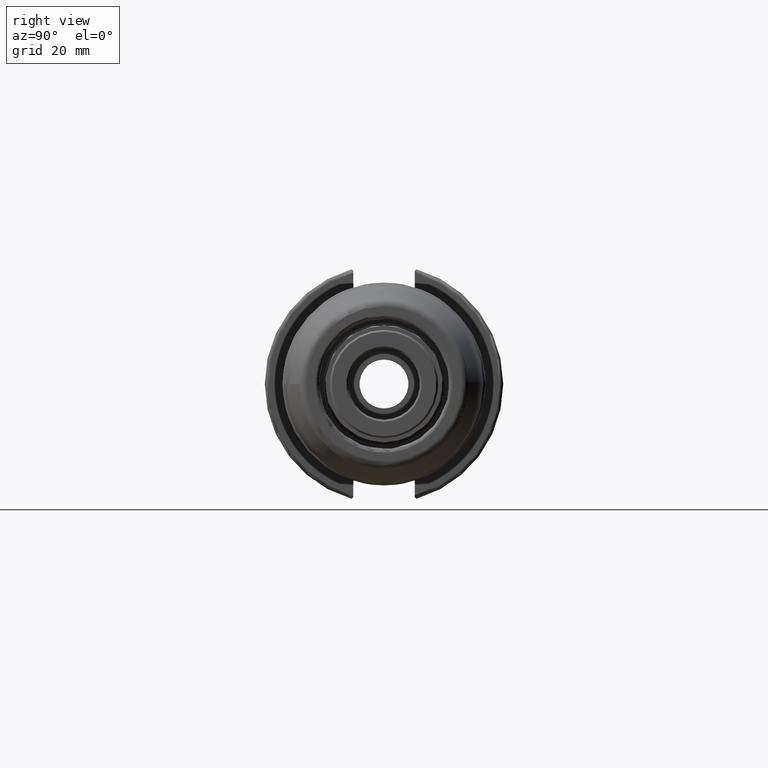
[diagram: clean part render]
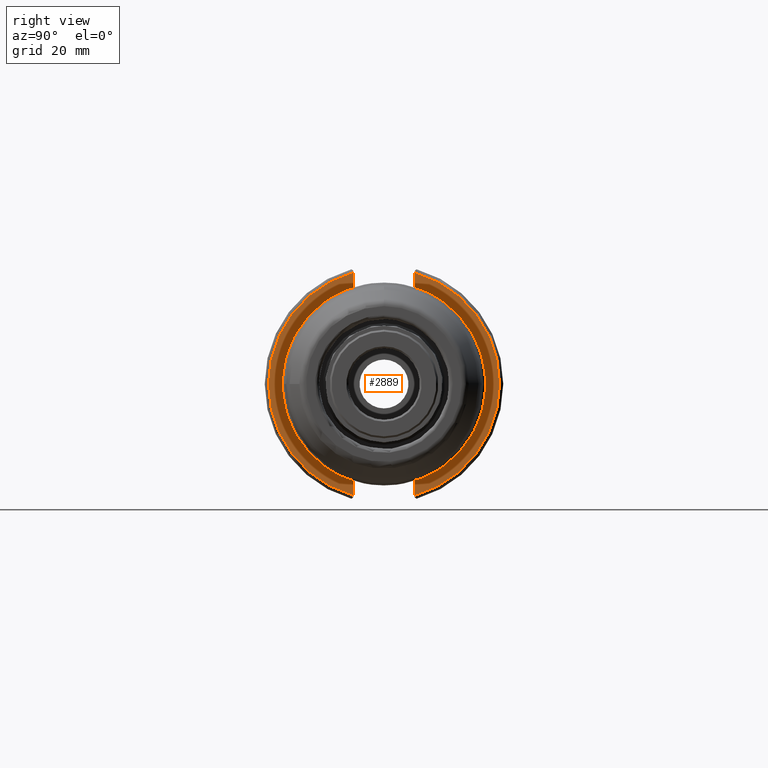
[diagram: same view with one face highlighted and labeled with its STEP entity id]
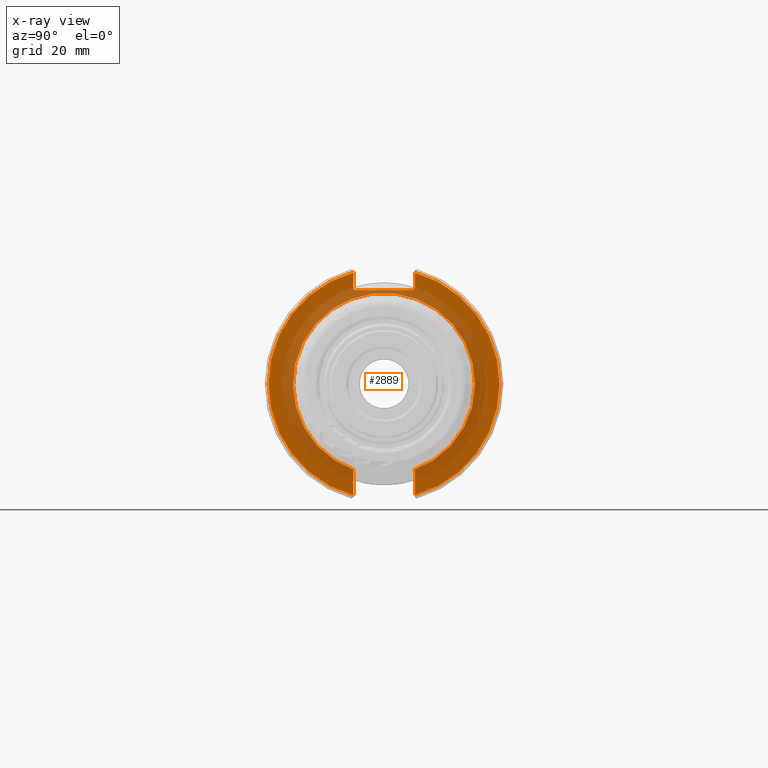
[diagram: x-ray of the same camera — body ghosted, the highlighted face saturated]
A machine part, right view. The second image highlights one B-rep face of the part: STEP entity #2889.
The next image is the same camera in x-ray: the body ghosted, the highlighted face saturated — about 42% of this face is hidden behind the body in this view.
In plain terms, the highlighted planar face has unit normal (1, 0, 0).
Its self-contained STEP definition (entity closure, byte-faithful):
#249=PLANE('',#3180);
#326=FACE_OUTER_BOUND('',#493,.T.);
#493=EDGE_LOOP('',(#2077,#2078,#2079,#2080,#2081,#2082,#2083,#2084,#2085,
#2086,#2087,#2088));
#658=LINE('',#4514,#807);
#664=LINE('',#4539,#813);
#665=LINE('',#4541,#814);
#666=LINE('',#4543,#815);
#667=LINE('',#4545,#816);
#668=LINE('',#4547,#817);
#669=LINE('',#4549,#818);
#670=LINE('',#4553,#819);
#671=LINE('',#4554,#820);
#807=VECTOR('',#3639,10.);
#813=VECTOR('',#3647,10.);
#814=VECTOR('',#3648,10.);
#815=VECTOR('',#3649,10.);
#816=VECTOR('',#3650,10.);
#817=VECTOR('',#3651,10.);
#818=VECTOR('',#3652,10.);
#819=VECTOR('',#3655,10.);
#820=VECTOR('',#3656,10.);
#961=CIRCLE('',#3134,24.225);
#989=CIRCLE('',#3176,30.75);
#991=CIRCLE('',#3181,30.75);
#1150=VERTEX_POINT('',#4354);
#1151=VERTEX_POINT('',#4359);
#1190=VERTEX_POINT('',#4469);
#1191=VERTEX_POINT('',#4476);
#1197=VERTEX_POINT('',#4513);
#1204=VERTEX_POINT('',#4540);
#1205=VERTEX_POINT('',#4542);
#1206=VERTEX_POINT('',#4544);
#1207=VERTEX_POINT('',#4546);
#1208=VERTEX_POINT('',#4548);
#1209=VERTEX_POINT('',#4550);
#1210=VERTEX_POINT('',#4552);
#1481=EDGE_CURVE('',#1150,#1151,#961,.T.);
#1529=EDGE_CURVE('',#1190,#1191,#989,.T.);
#1537=EDGE_CURVE('',#1197,#1191,#658,.T.);
#1546=EDGE_CURVE('',#1197,#1150,#664,.T.);
#1547=EDGE_CURVE('',#1190,#1204,#665,.T.);
#1548=EDGE_CURVE('',#1205,#1204,#666,.T.);
#1549=EDGE_CURVE('',#1205,#1206,#667,.T.);
#1550=EDGE_CURVE('',#1207,#1206,#668,.T.);
#1551=EDGE_CURVE('',#1207,#1208,#669,.T.);
#1552=EDGE_CURVE('',#1209,#1208,#991,.T.);
#1553=EDGE_CURVE('',#1209,#1210,#670,.T.);
#1554=EDGE_CURVE('',#1151,#1210,#671,.T.);
#2077=ORIENTED_EDGE('',*,*,#1481,.F.);
#2078=ORIENTED_EDGE('',*,*,#1546,.F.);
#2079=ORIENTED_EDGE('',*,*,#1537,.T.);
#2080=ORIENTED_EDGE('',*,*,#1529,.F.);
#2081=ORIENTED_EDGE('',*,*,#1547,.T.);
#2082=ORIENTED_EDGE('',*,*,#1548,.F.);
#2083=ORIENTED_EDGE('',*,*,#1549,.T.);
#2084=ORIENTED_EDGE('',*,*,#1550,.F.);
#2085=ORIENTED_EDGE('',*,*,#1551,.T.);
#2086=ORIENTED_EDGE('',*,*,#1552,.F.);
#2087=ORIENTED_EDGE('',*,*,#1553,.T.);
#2088=ORIENTED_EDGE('',*,*,#1554,.F.);
#2889=ADVANCED_FACE('',(#326),#249,.T.);
#3134=AXIS2_PLACEMENT_3D('',#4360,#3528,#3529);
#3176=AXIS2_PLACEMENT_3D('',#4477,#3629,#3630);
#3180=AXIS2_PLACEMENT_3D('',#4538,#3645,#3646);
#3181=AXIS2_PLACEMENT_3D('',#4551,#3653,#3654);
#3528=DIRECTION('center_axis',(1.,0.,0.));
#3529=DIRECTION('ref_axis',(0.,1.22464679914735E-16,-1.));
#3629=DIRECTION('center_axis',(-1.,0.,0.));
#3630=DIRECTION('ref_axis',(0.,1.,-6.12323399573677E-17));
#3639=DIRECTION('',(0.,0.,-1.));
#3645=DIRECTION('center_axis',(1.,0.,0.));
#3646=DIRECTION('ref_axis',(0.,0.,-1.));
#3647=DIRECTION('',(0.,-0.707106781186549,0.707106781186546));
#3648=DIRECTION('',(0.,0.,-1.));
#3649=DIRECTION('',(0.,0.707106781186549,0.707106781186546));
#3650=DIRECTION('',(0.,-1.,0.));
#3651=DIRECTION('',(0.,0.70710678118655,-0.707106781186545));
#3652=DIRECTION('',(0.,0.,1.));
#3653=DIRECTION('center_axis',(-1.,0.,0.));
#3654=DIRECTION('ref_axis',(0.,-1.,1.60812264967664E-16));
#3655=DIRECTION('',(0.,0.,1.));
#3656=DIRECTION('',(0.,-0.707106781186549,-0.707106781186546));
#4354=CARTESIAN_POINT('',(19.05,7.96733080633405,-22.8773308063341));
#4359=CARTESIAN_POINT('',(19.05,-7.96733080633405,-22.877330806334));
#4360=CARTESIAN_POINT('Origin',(19.05,0.,0.));
#4469=CARTESIAN_POINT('',(19.05,8.19,29.6392712461019));
#4476=CARTESIAN_POINT('',(19.05,8.19,-29.6392712461019));
#4477=CARTESIAN_POINT('Origin',(19.05,0.,0.));
#4513=CARTESIAN_POINT('',(19.05,8.19,-23.1));
#4514=CARTESIAN_POINT('',(19.05,8.19,-11.3));
#4538=CARTESIAN_POINT('Origin',(19.05,0.,0.));
#4539=CARTESIAN_POINT('',(19.05,0.242499999999989,-15.1525));
#4540=CARTESIAN_POINT('',(19.05,8.19,25.5));
#4541=CARTESIAN_POINT('',(19.05,8.19,12.5));
#4542=CARTESIAN_POINT('',(19.05,7.69,25.));
#4543=CARTESIAN_POINT('',(19.05,-0.35750000000001,16.9525));
#4544=CARTESIAN_POINT('',(19.05,-7.69,25.));
#4545=CARTESIAN_POINT('',(19.05,0.,25.));
#4546=CARTESIAN_POINT('',(19.05,-8.19,25.5));
#4547=CARTESIAN_POINT('',(19.05,0.357500000000014,16.9525));
#4548=CARTESIAN_POINT('',(19.05,-8.19,29.6392712461019));
#4549=CARTESIAN_POINT('',(19.05,-8.19,12.5));
#4550=CARTESIAN_POINT('',(19.05,-8.19,-29.6392712461019));
#4551=CARTESIAN_POINT('Origin',(19.05,0.,0.));
#4552=CARTESIAN_POINT('',(19.05,-8.19,-23.1));
#4553=CARTESIAN_POINT('',(19.05,-8.19,-11.3));
#4554=CARTESIAN_POINT('',(19.05,-0.242499999999991,-15.1525));